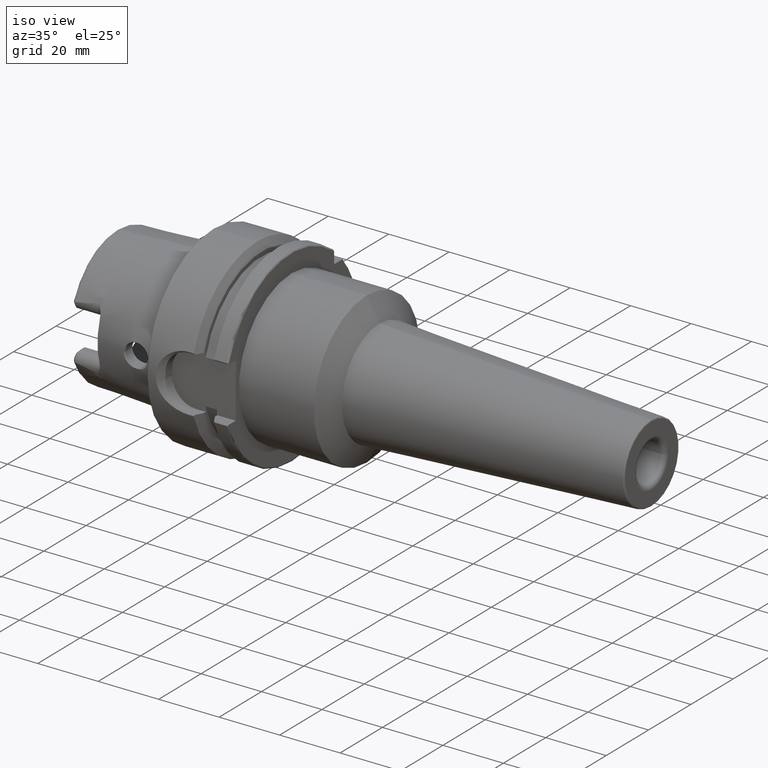
[diagram: clean part render]
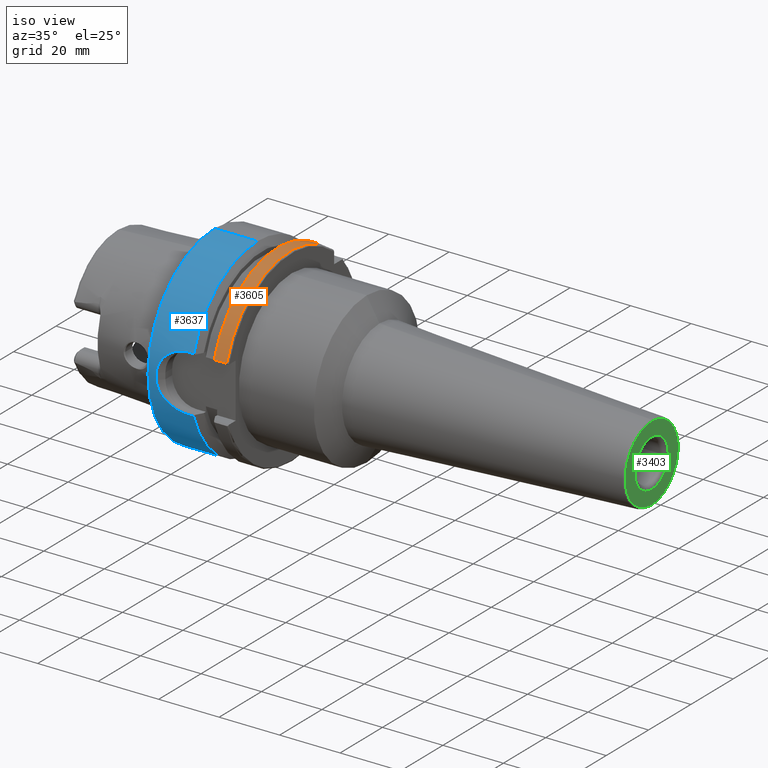
[diagram: same view with three faces highlighted in distinct colors, each labeled with its STEP entity id]
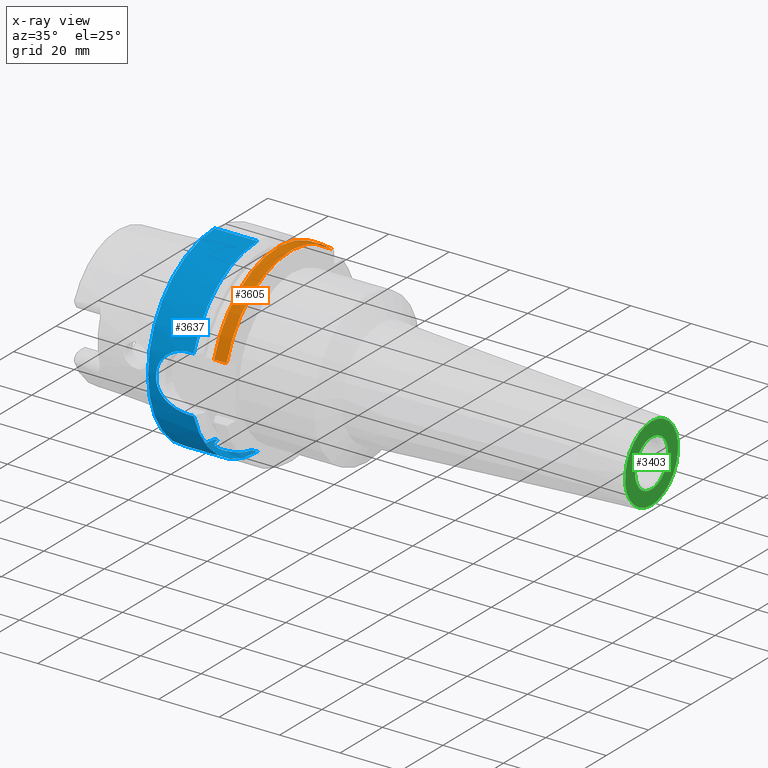
[diagram: x-ray of the same camera — body ghosted, the three highlighted faces saturated]
A machine part, iso view with three faces highlighted in distinct colors.
The next image is the same camera in x-ray (body ghosted, the three faces saturated) — at least one of them is partly hidden behind the body in this view.
Their STEP definitions:

[orange] entity #3605 — the highlighted cylindrical surface (partial cylindrical patch) has radius 31.5 mm, axis along (1, 0, 0).
#594=DIRECTION('',(1.E0,0.E0,0.E0));
#595=VECTOR('',#594,4.122500945915E0);
#596=CARTESIAN_POINT('',(2.137749905409E1,-3.007314630073E1,9.373146300730E0));
#597=LINE('',#596,#595);
#598=DIRECTION('',(1.E0,0.E0,0.E0));
#599=VECTOR('',#598,4.122500945915E0);
#600=CARTESIAN_POINT('',(2.137749905409E1,2.E1,2.433618704728E1));
#601=LINE('',#600,#599);
#1800=CARTESIAN_POINT('',(2.55E1,-3.007314630073E1,9.373146300730E0));
#1951=CARTESIAN_POINT('',(2.137749905409E1,-3.007314630073E1,9.373146300730E0));
#1974=CARTESIAN_POINT('',(2.137749905409E1,2.E1,2.433618704728E1));
#1976=CARTESIAN_POINT('',(2.137749905409E1,0.E0,0.E0));
#1977=DIRECTION('',(1.E0,0.E0,0.E0));
#1978=DIRECTION('',(0.E0,6.349206349206E-1,7.725773665802E-1));
#1979=AXIS2_PLACEMENT_3D('',#1976,#1977,#1978);
#2180=CARTESIAN_POINT('',(2.55E1,2.E1,2.433618704728E1));
#2197=CARTESIAN_POINT('',(2.55E1,0.E0,0.E0));
#2198=DIRECTION('',(-1.E0,0.E0,0.E0));
#2199=DIRECTION('',(0.E0,-9.547030571660E-1,2.975602000232E-1));
#2200=AXIS2_PLACEMENT_3D('',#2197,#2198,#2199);
#2628=VERTEX_POINT('',#1974);
#2820=VERTEX_POINT('',#1951);
#2868=VERTEX_POINT('',#2180);
#2872=VERTEX_POINT('',#1800);
#3590=CARTESIAN_POINT('',(0.E0,0.E0,0.E0));
#3591=DIRECTION('',(1.E0,0.E0,0.E0));
#3592=DIRECTION('',(0.E0,0.E0,1.E0));
#3593=AXIS2_PLACEMENT_3D('',#3590,#3591,#3592);
#3594=CYLINDRICAL_SURFACE('',#3593,3.15E1);
#3596=ORIENTED_EDGE('',*,*,#3595,.F.);
#3598=ORIENTED_EDGE('',*,*,#3597,.F.);
#3600=ORIENTED_EDGE('',*,*,#3599,.F.);
#3602=ORIENTED_EDGE('',*,*,#3601,.T.);
#3603=EDGE_LOOP('',(#3596,#3598,#3600,#3602));
#3604=FACE_OUTER_BOUND('',#3603,.F.);
#3605=ADVANCED_FACE('',(#3604),#3594,.T.);
#1980=CIRCLE('',#1979,3.15E1);
#2201=CIRCLE('',#2200,3.15E1);
#3595=EDGE_CURVE('',#2872,#2868,#2201,.T.);
#3597=EDGE_CURVE('',#2820,#2872,#597,.T.);
#3599=EDGE_CURVE('',#2628,#2820,#1980,.T.);
#3601=EDGE_CURVE('',#2628,#2868,#601,.T.);

[blue] entity #3637 — the highlighted cylindrical surface (partial cylindrical patch) has radius 31.5 mm, axis along (1, 0, 0).
#602=CARTESIAN_POINT('',(5.E-1,0.E0,0.E0));
#603=DIRECTION('',(-1.E0,0.E0,0.E0));
#604=DIRECTION('',(0.E0,0.E0,-1.E0));
#605=AXIS2_PLACEMENT_3D('',#602,#603,#604);
#607=DIRECTION('',(-1.E0,-1.152682623977E-12,0.E0));
#608=VECTOR('',#607,1.412250090457E1);
#609=CARTESIAN_POINT('',(1.462250090457E1,0.E0,3.15E1));
#610=LINE('',#609,#608);
#611=CARTESIAN_POINT('',(1.462250090457E1,0.E0,0.E0));
#612=DIRECTION('',(1.E0,0.E0,0.E0));
#613=DIRECTION('',(0.E0,0.E0,1.E0));
#614=AXIS2_PLACEMENT_3D('',#611,#612,#613);
#616=DIRECTION('',(1.E0,0.E0,0.E0));
#617=VECTOR('',#616,1.622500904567E0);
#618=CARTESIAN_POINT('',(1.3E1,-3.007314630073E1,9.373146300730E0));
#619=LINE('',#618,#617);
#620=CARTESIAN_POINT('',(3.215877017138E0,-3.148412298286E1,1.E0));
#621=CARTESIAN_POINT('',(3.229667999164E0,-3.147033200084E1,1.434196974159E0));
#622=CARTESIAN_POINT('',(3.331305148110E0,-3.142562614716E1,2.280557906877E0));
#623=CARTESIAN_POINT('',(3.689639209254E0,-3.131261894329E1,3.497824814117E0));
#624=CARTESIAN_POINT('',(4.224387561762E0,-3.116591969202E1,4.617731549331E0));
#625=CARTESIAN_POINT('',(4.908842568303E0,-3.099748287679E1,5.632070943113E0));
#626=CARTESIAN_POINT('',(5.712482050064E0,-3.082045350516E1,6.526140660742E0));
#627=CARTESIAN_POINT('',(6.610248790574E0,-3.064607991101E1,7.296749719208E0));
#628=CARTESIAN_POINT('',(7.571522800308E0,-3.048524436851E1,7.938452155490E0));
#629=CARTESIAN_POINT('',(8.586678709411E0,-3.034375148093E1,8.460694722024E0));
#630=CARTESIAN_POINT('',(9.645764018389E0,-3.022707288446E1,8.866638984176E0));
#631=CARTESIAN_POINT('',(1.074128466146E1,-3.013966717822E1,9.158034230836E0));
#632=CARTESIAN_POINT('',(1.186302386205E1,-3.008546433696E1,9.333758812896E0));
#633=CARTESIAN_POINT('',(1.261911814478E1,-3.007314630073E1,9.373146300730E0));
#634=CARTESIAN_POINT('',(1.3E1,-3.007314630073E1,9.373146300730E0));
#636=CARTESIAN_POINT('',(3.215877017138E0,-3.148412298286E1,1.E0));
#637=CARTESIAN_POINT('',(3.194702323244E0,-3.150529767676E1,3.333333333333E-1));
#638=CARTESIAN_POINT('',(3.194702323244E0,-3.150529767676E1,
-3.333333333333E-1));
#639=CARTESIAN_POINT('',(3.215877017138E0,-3.148412298286E1,-1.E0));
#641=CARTESIAN_POINT('',(1.3E1,-3.007314630073E1,-9.373146300730E0));
#642=CARTESIAN_POINT('',(1.261853332120E1,-3.007314630073E1,-9.373146300730E0));
#643=CARTESIAN_POINT('',(1.186054965003E1,-3.008548964654E1,-9.333679878844E0));
#644=CARTESIAN_POINT('',(1.073214946153E1,-3.014018055062E1,-9.156365746563E0));
#645=CARTESIAN_POINT('',(9.631145388051E0,-3.022842683235E1,-8.862067281056E0));
#646=CARTESIAN_POINT('',(8.571278418516E0,-3.034570143073E1,-8.453719776647E0));
#647=CARTESIAN_POINT('',(7.561968874510E0,-3.048678333923E1,-7.932465852427E0));
#648=CARTESIAN_POINT('',(6.609353099417E0,-3.064632014939E1,-7.295523702098E0));
#649=CARTESIAN_POINT('',(5.719379577085E0,-3.081907849533E1,-6.532291860359E0));
#650=CARTESIAN_POINT('',(4.918592559215E0,-3.099521802093E1,-5.644324145033E0));
#651=CARTESIAN_POINT('',(4.231158808814E0,-3.116413549913E1,-4.629983120332E0));
#652=CARTESIAN_POINT('',(3.691949597490E0,-3.131190693228E1,-3.504990575318E0));
#653=CARTESIAN_POINT('',(3.331145804748E0,-3.142565099898E1,-2.281032014602E0));
#654=CARTESIAN_POINT('',(3.229661047521E0,-3.147033895248E1,-1.433978107804E0));
#655=CARTESIAN_POINT('',(3.215877017138E0,-3.148412298286E1,-1.E0));
#657=DIRECTION('',(1.E0,0.E0,0.E0));
#658=VECTOR('',#657,1.622500904567E0);
#659=CARTESIAN_POINT('',(1.3E1,-3.007314630073E1,-9.373146300730E0));
#660=LINE('',#659,#658);
#661=CARTESIAN_POINT('',(1.462250090457E1,0.E0,0.E0));
#662=DIRECTION('',(1.E0,0.E0,0.E0));
#663=DIRECTION('',(0.E0,-9.547030571660E-1,-2.975602000232E-1));
#664=AXIS2_PLACEMENT_3D('',#661,#662,#663);
#666=DIRECTION('',(-1.E0,0.E0,0.E0));
#667=VECTOR('',#666,2.122500904567E0);
#668=CARTESIAN_POINT('',(1.462250090457E1,0.E0,-3.15E1));
#669=LINE('',#668,#667);
#670=CARTESIAN_POINT('',(1.5E0,0.E0,-3.15E1));
#671=CARTESIAN_POINT('',(1.5E0,-3.588951255127E-1,-3.15E1));
#672=CARTESIAN_POINT('',(1.581138327990E0,-1.048548521747E0,-3.148782376809E1));
#673=CARTESIAN_POINT('',(1.910588073966E0,-2.006564336888E0,-3.144040908891E1));
#674=CARTESIAN_POINT('',(2.415944971875E0,-2.861556117510E0,-3.137324069068E1));
#675=CARTESIAN_POINT('',(3.093296979582E0,-3.621570072850E0,-3.129379480836E1));
#676=CARTESIAN_POINT('',(3.932860337858E0,-4.259632130927E0,-3.121237817627E1));
#677=CARTESIAN_POINT('',(4.908163968859E0,-4.738763837594E0,-3.114229734464E1));
#678=CARTESIAN_POINT('',(5.940629906439E0,-5.023428099724E0,-3.109702626598E1));
#679=CARTESIAN_POINT('',(7.003177692584E0,-5.118459986461E0,-3.108133735981E1));
#680=CARTESIAN_POINT('',(8.065102610065E0,-5.022310651440E0,-3.109720856453E1));
#681=CARTESIAN_POINT('',(9.095890701222E0,-4.737167472201E0,-3.114254165967E1));
#682=CARTESIAN_POINT('',(1.007119715688E1,-4.257247395534E0,-3.121271241342E1));
#683=CARTESIAN_POINT('',(1.091189752168E1,-3.616987749219E0,-3.129434443001E1));
#684=CARTESIAN_POINT('',(1.158923361556E1,-2.854578399489E0,-3.137389265772E1));
#685=CARTESIAN_POINT('',(1.209279314293E1,-1.998956427454E0,-3.144088492167E1));
#686=CARTESIAN_POINT('',(1.241973333056E1,-1.043420158419E0,-3.148795551285E1));
#687=CARTESIAN_POINT('',(1.25E1,-3.569041729368E-1,-3.15E1));
#688=CARTESIAN_POINT('',(1.25E1,0.E0,-3.15E1));
#690=DIRECTION('',(-1.E0,-3.500340280064E-12,0.E0));
#691=VECTOR('',#690,1.E0);
#692=CARTESIAN_POINT('',(1.5E0,0.E0,-3.15E1));
#693=LINE('',#692,#691);
#712=CARTESIAN_POINT('',(1.25E1,0.E0,-3.15E1));
#730=CARTESIAN_POINT('',(1.5E0,0.E0,-3.15E1));
#2630=CARTESIAN_POINT('',(1.462250090457E1,0.E0,3.15E1));
#2631=VERTEX_POINT('',#2630);
#2773=VERTEX_POINT('',#712);
#2774=VERTEX_POINT('',#730);
#2783=CARTESIAN_POINT('',(1.462250090457E1,0.E0,-3.15E1));
#2784=VERTEX_POINT('',#2783);
#2807=CARTESIAN_POINT('',(1.3E1,-3.007314630073E1,-9.373146300730E0));
#2808=CARTESIAN_POINT('',(1.462250090457E1,-3.007314630073E1,
-9.373146300730E0));
#2809=VERTEX_POINT('',#2807);
#2810=VERTEX_POINT('',#2808);
#2811=VERTEX_POINT('',#655);
#2812=VERTEX_POINT('',#636);
#2813=VERTEX_POINT('',#634);
#2814=CARTESIAN_POINT('',(1.462250090457E1,-3.007314630073E1,9.373146300730E0));
#2815=VERTEX_POINT('',#2814);
#2855=CARTESIAN_POINT('',(5.E-1,0.E0,3.15E1));
#2856=CARTESIAN_POINT('',(5.E-1,0.E0,-3.15E1));
#2857=VERTEX_POINT('',#2855);
#2858=VERTEX_POINT('',#2856);
#3606=CARTESIAN_POINT('',(0.E0,0.E0,0.E0));
#3607=DIRECTION('',(1.E0,0.E0,0.E0));
#3608=DIRECTION('',(0.E0,0.E0,1.E0));
#3609=AXIS2_PLACEMENT_3D('',#3606,#3607,#3608);
#3610=CYLINDRICAL_SURFACE('',#3609,3.15E1);
#3612=ORIENTED_EDGE('',*,*,#3611,.T.);
#3614=ORIENTED_EDGE('',*,*,#3613,.F.);
#3616=ORIENTED_EDGE('',*,*,#3615,.T.);
#3618=ORIENTED_EDGE('',*,*,#3617,.F.);
#3620=ORIENTED_EDGE('',*,*,#3619,.F.);
#3622=ORIENTED_EDGE('',*,*,#3621,.T.);
#3624=ORIENTED_EDGE('',*,*,#3623,.F.);
#3626=ORIENTED_EDGE('',*,*,#3625,.T.);
#3628=ORIENTED_EDGE('',*,*,#3627,.T.);
#3630=ORIENTED_EDGE('',*,*,#3629,.T.);
#3632=ORIENTED_EDGE('',*,*,#3631,.F.);
#3634=ORIENTED_EDGE('',*,*,#3633,.T.);
#3635=EDGE_LOOP('',(#3612,#3614,#3616,#3618,#3620,#3622,#3624,#3626,#3628,#3630,
#3632,#3634));
#3636=FACE_OUTER_BOUND('',#3635,.F.);
#3637=ADVANCED_FACE('',(#3636),#3610,.T.);
#606=CIRCLE('',#605,3.15E1);
#615=CIRCLE('',#614,3.15E1);
#635=B_SPLINE_CURVE_WITH_KNOTS('',3,(#620,#621,#622,#623,#624,#625,#626,#627,
#628,#629,#630,#631,#632,#633,#634),.UNSPECIFIED.,.F.,.F.,(4,1,1,1,1,1,1,1,1,1,
1,1,4),(0.E0,8.333333333333E-2,1.666666666667E-1,2.5E-1,3.333333333333E-1,
4.166666666667E-1,5.E-1,5.833333333333E-1,6.666666666667E-1,7.5E-1,
8.333333333333E-1,9.166666666667E-1,1.E0),.UNSPECIFIED.);
#640=B_SPLINE_CURVE_WITH_KNOTS('',3,(#636,#637,#638,#639),.UNSPECIFIED.,.F.,.F.,
(4,4),(0.E0,1.E0),.UNSPECIFIED.);
#656=B_SPLINE_CURVE_WITH_KNOTS('',3,(#641,#642,#643,#644,#645,#646,#647,#648,
#649,#650,#651,#652,#653,#654,#655),.UNSPECIFIED.,.F.,.F.,(4,1,1,1,1,1,1,1,1,1,
1,1,4),(0.E0,8.333333333333E-2,1.666666666667E-1,2.5E-1,3.333333333333E-1,
4.166666666667E-1,5.E-1,5.833333333333E-1,6.666666666667E-1,7.5E-1,
8.333333333333E-1,9.166666666667E-1,1.E0),.UNSPECIFIED.);
#665=CIRCLE('',#664,3.15E1);
#689=B_SPLINE_CURVE_WITH_KNOTS('',3,(#670,#671,#672,#673,#674,#675,#676,#677,
#678,#679,#680,#681,#682,#683,#684,#685,#686,#687,#688),.UNSPECIFIED.,.F.,.F.,
(4,1,1,1,1,1,1,1,1,1,1,1,1,1,1,1,4),(0.E0,6.25E-2,1.25E-1,1.875E-1,2.5E-1,
3.125E-1,3.75E-1,4.375E-1,5.E-1,5.625E-1,6.25E-1,6.875E-1,7.5E-1,8.125E-1,
8.75E-1,9.375E-1,1.E0),.UNSPECIFIED.);
#3611=EDGE_CURVE('',#2858,#2857,#606,.T.);
#3613=EDGE_CURVE('',#2631,#2857,#610,.T.);
#3615=EDGE_CURVE('',#2631,#2815,#615,.T.);
#3617=EDGE_CURVE('',#2813,#2815,#619,.T.);
#3619=EDGE_CURVE('',#2812,#2813,#635,.T.);
#3621=EDGE_CURVE('',#2812,#2811,#640,.T.);
#3623=EDGE_CURVE('',#2809,#2811,#656,.T.);
#3625=EDGE_CURVE('',#2809,#2810,#660,.T.);
#3627=EDGE_CURVE('',#2810,#2784,#665,.T.);
#3629=EDGE_CURVE('',#2784,#2773,#669,.T.);
#3631=EDGE_CURVE('',#2774,#2773,#689,.T.);
#3633=EDGE_CURVE('',#2774,#2858,#693,.T.);

[green] entity #3403 — the highlighted planar face has unit normal (1, 0, 0).
#439=CARTESIAN_POINT('',(1.45E2,0.E0,0.E0));
#440=DIRECTION('',(-1.E0,0.E0,0.E0));
#441=DIRECTION('',(0.E0,0.E0,-1.E0));
#442=AXIS2_PLACEMENT_3D('',#439,#440,#441);
#444=CARTESIAN_POINT('',(1.45E2,0.E0,0.E0));
#445=DIRECTION('',(-1.E0,0.E0,0.E0));
#446=DIRECTION('',(0.E0,0.E0,1.E0));
#447=AXIS2_PLACEMENT_3D('',#444,#445,#446);
#449=CARTESIAN_POINT('',(1.45E2,0.E0,0.E0));
#450=DIRECTION('',(-1.E0,0.E0,0.E0));
#451=DIRECTION('',(0.E0,-1.E0,0.E0));
#452=AXIS2_PLACEMENT_3D('',#449,#450,#451);
#454=CARTESIAN_POINT('',(1.45E2,0.E0,0.E0));
#455=DIRECTION('',(-1.E0,0.E0,0.E0));
#456=DIRECTION('',(0.E0,1.E0,0.E0));
#457=AXIS2_PLACEMENT_3D('',#454,#455,#456);
#2903=CARTESIAN_POINT('',(1.45E2,0.E0,-1.252551771664E1));
#2904=CARTESIAN_POINT('',(1.45E2,0.E0,1.252551771664E1));
#2905=VERTEX_POINT('',#2903);
#2906=VERTEX_POINT('',#2904);
#2907=CARTESIAN_POINT('',(1.45E2,-7.85E0,0.E0));
#2908=CARTESIAN_POINT('',(1.45E2,7.85E0,0.E0));
#2909=VERTEX_POINT('',#2907);
#2910=VERTEX_POINT('',#2908);
#3387=CARTESIAN_POINT('',(1.45E2,0.E0,0.E0));
#3388=DIRECTION('',(1.E0,0.E0,0.E0));
#3389=DIRECTION('',(0.E0,0.E0,1.E0));
#3390=AXIS2_PLACEMENT_3D('',#3387,#3388,#3389);
#3391=PLANE('',#3390);
#3393=ORIENTED_EDGE('',*,*,#3392,.T.);
#3395=ORIENTED_EDGE('',*,*,#3394,.T.);
#3396=EDGE_LOOP('',(#3393,#3395));
#3397=FACE_OUTER_BOUND('',#3396,.F.);
#3398=ORIENTED_EDGE('',*,*,#3377,.F.);
#3400=ORIENTED_EDGE('',*,*,#3399,.F.);
#3401=EDGE_LOOP('',(#3398,#3400));
#3402=FACE_BOUND('',#3401,.F.);
#3403=ADVANCED_FACE('',(#3397,#3402),#3391,.T.);
#443=CIRCLE('',#442,1.252551771664E1);
#448=CIRCLE('',#447,1.252551771664E1);
#453=CIRCLE('',#452,7.85E0);
#458=CIRCLE('',#457,7.85E0);
#3377=EDGE_CURVE('',#2909,#2910,#453,.T.);
#3392=EDGE_CURVE('',#2905,#2906,#443,.T.);
#3394=EDGE_CURVE('',#2906,#2905,#448,.T.);
#3399=EDGE_CURVE('',#2910,#2909,#458,.T.);